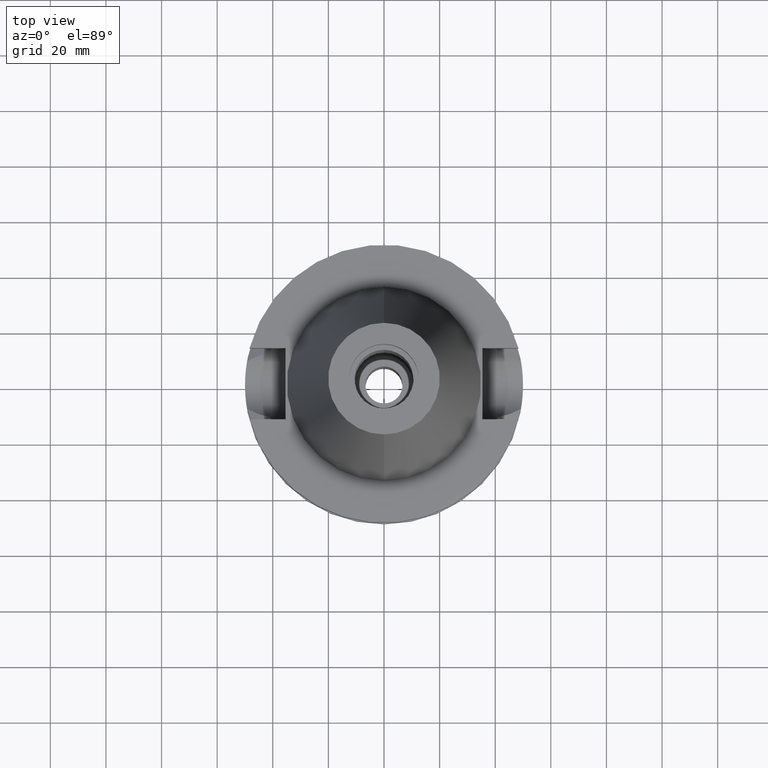
[diagram: clean part render]
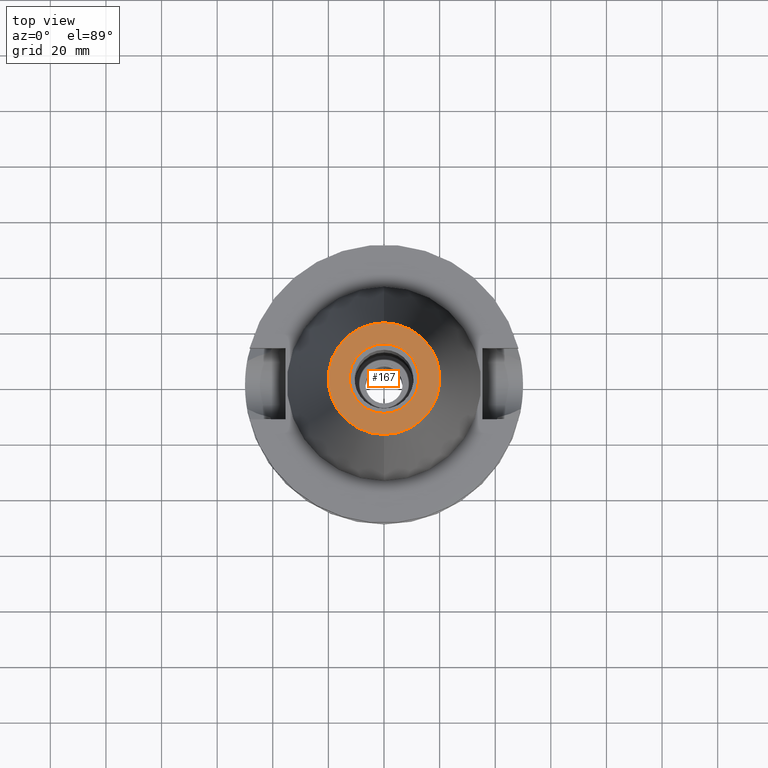
[diagram: same view with one face highlighted and labeled with its STEP entity id]
A machine part, top view. The second image highlights one B-rep face of the part: STEP entity #167.
In plain terms, the highlighted planar face has unit normal (0, 0, -1).
Its self-contained STEP definition (entity closure, byte-faithful):
#18 = PLANE ( 'NONE',  #3477 ) ;
#103 = DIRECTION ( 'NONE',  ( 0.0000000000000000000, 0.0000000000000000000, 1.000000000000000000 ) ) ;
#167 = ADVANCED_FACE ( 'NONE', ( #1967, #2224 ), #18, .F. ) ;
#215 = CIRCLE ( 'NONE', #2405, 20.07942971896000017 ) ;
#473 = VERTEX_POINT ( 'NONE', #2361 ) ;
#610 = CIRCLE ( 'NONE', #2515, 12.50000000000000000 ) ;
#823 = EDGE_CURVE ( 'NONE', #2588, #1250, #3120, .T. ) ;
#880 = CARTESIAN_POINT ( 'NONE',  ( 0.0000000000000000000, 20.07942971896000017, 101.7999999999999972 ) ) ;
#1069 = EDGE_CURVE ( 'NONE', #1250, #2588, #215, .T. ) ;
#1082 = CIRCLE ( 'NONE', #1807, 12.50000000000000000 ) ;
#1111 = DIRECTION ( 'NONE',  ( 0.0000000000000000000, 0.0000000000000000000, -1.000000000000000000 ) ) ;
#1250 = VERTEX_POINT ( 'NONE', #2803 ) ;
#1370 = CARTESIAN_POINT ( 'NONE',  ( 0.0000000000000000000, 2.471337240678999545E-14, 101.7999999999999972 ) ) ;
#1425 = DIRECTION ( 'NONE',  ( 0.0000000000000000000, -1.000000000000000000, 0.0000000000000000000 ) ) ;
#1459 = DIRECTION ( 'NONE',  ( 0.0000000000000000000, 0.0000000000000000000, -1.000000000000000000 ) ) ;
#1507 = DIRECTION ( 'NONE',  ( 0.0000000000000000000, -1.000000000000000000, 0.0000000000000000000 ) ) ;
#1511 = CARTESIAN_POINT ( 'NONE',  ( 0.0000000000000000000, 1.847992019912999597E-14, 101.7999999999999972 ) ) ;
#1807 = AXIS2_PLACEMENT_3D ( 'NONE', #2940, #2102, #2424 ) ;
#1914 = VERTEX_POINT ( 'NONE', #3294 ) ;
#1967 = FACE_OUTER_BOUND ( 'NONE', #2982, .T. ) ;
#1983 = ORIENTED_EDGE ( 'NONE', *, *, #1069, .F. ) ;
#2102 = DIRECTION ( 'NONE',  ( 0.0000000000000000000, 0.0000000000000000000, 1.000000000000000000 ) ) ;
#2179 = DIRECTION ( 'NONE',  ( 0.0000000000000000000, 0.0000000000000000000, -1.000000000000000000 ) ) ;
#2224 = FACE_BOUND ( 'NONE', #2590, .T. ) ;
#2361 = CARTESIAN_POINT ( 'NONE',  ( 0.0000000000000000000, 12.50000000000000000, 101.7999999999999972 ) ) ;
#2405 = AXIS2_PLACEMENT_3D ( 'NONE', #3523, #2179, #2430 ) ;
#2424 = DIRECTION ( 'NONE',  ( 0.0000000000000000000, 1.000000000000000000, 0.0000000000000000000 ) ) ;
#2430 = DIRECTION ( 'NONE',  ( 0.0000000000000000000, -1.000000000000000000, 0.0000000000000000000 ) ) ;
#2515 = AXIS2_PLACEMENT_3D ( 'NONE', #3262, #103, #1507 ) ;
#2536 = ORIENTED_EDGE ( 'NONE', *, *, #823, .F. ) ;
#2588 = VERTEX_POINT ( 'NONE', #880 ) ;
#2590 = EDGE_LOOP ( 'NONE', ( #3370, #3611 ) ) ;
#2593 = AXIS2_PLACEMENT_3D ( 'NONE', #1511, #1459, #2599 ) ;
#2599 = DIRECTION ( 'NONE',  ( 0.0000000000000000000, 1.000000000000000000, 0.0000000000000000000 ) ) ;
#2707 = EDGE_CURVE ( 'NONE', #1914, #473, #610, .T. ) ;
#2751 = EDGE_CURVE ( 'NONE', #473, #1914, #1082, .T. ) ;
#2803 = CARTESIAN_POINT ( 'NONE',  ( 0.0000000000000000000, -20.07942971896000017, 101.7999999999999972 ) ) ;
#2940 = CARTESIAN_POINT ( 'NONE',  ( 0.0000000000000000000, 2.602251983507999750E-14, 101.7999999999999972 ) ) ;
#2982 = EDGE_LOOP ( 'NONE', ( #2536, #1983 ) ) ;
#3120 = CIRCLE ( 'NONE', #2593, 20.07942971896000017 ) ;
#3262 = CARTESIAN_POINT ( 'NONE',  ( 0.0000000000000000000, 2.602251983507999750E-14, 101.7999999999999972 ) ) ;
#3294 = CARTESIAN_POINT ( 'NONE',  ( 0.0000000000000000000, -12.50000000000000000, 101.7999999999999972 ) ) ;
#3370 = ORIENTED_EDGE ( 'NONE', *, *, #2751, .F. ) ;
#3477 = AXIS2_PLACEMENT_3D ( 'NONE', #1370, #1111, #1425 ) ;
#3523 = CARTESIAN_POINT ( 'NONE',  ( 0.0000000000000000000, 1.847992019912999597E-14, 101.7999999999999972 ) ) ;
#3611 = ORIENTED_EDGE ( 'NONE', *, *, #2707, .F. ) ;